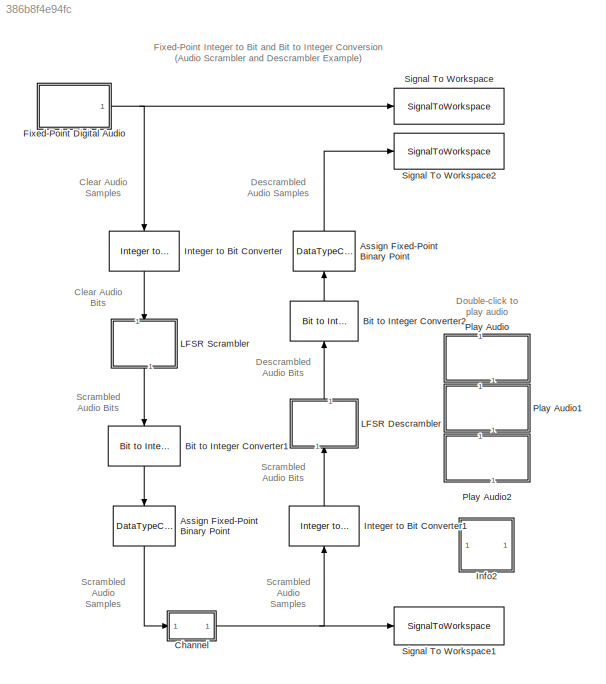
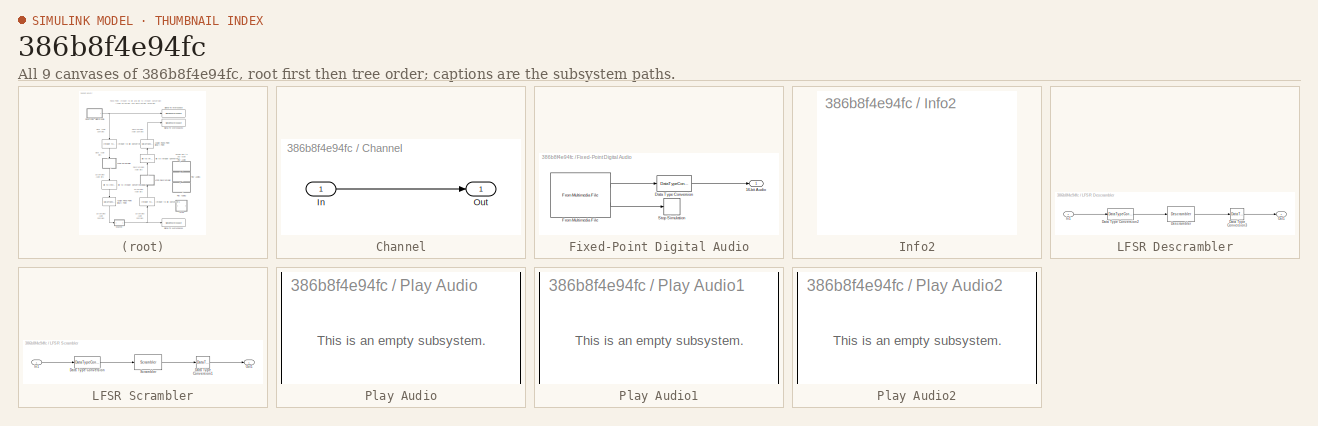
[diagram: thumbnail index - all 9 canvases of the model, root first then tree order]
MODEL slx_386b8f4e94fc
KIND model
BLOCK [DataTypeConversion] Assign Fixed-Point Binary Point
  ConvertRealWorld = Stored Integer (SI)
  OutDataTypeStr = fixdt(1,16,15)
  OutMax = (32767/32768)
  OutMin = -1
  RndMeth = Floor
  SaturateOnIntegerOverflow = off
BLOCK [Reference] Bit to Integer Converter1  REF=commutil2/Bit to Integer
Converter
  Ports = [1, 1]
  SourceBlock = commutil2/Bit to Integer\nConverter
  SourceType = Bit to Integer Converter
  bitOrder = MSB first
  nbits = 16
  outDtype = Inherit via internal rule
  outDtypeSigned = Inherit via internal rule
  signedOutputValues = Signed
BLOCK [Reference] Bit to Integer Converter2  REF=commutil2/Bit to Integer
Converter
  Ports = [1, 1]
  SourceBlock = commutil2/Bit to Integer\nConverter
  SourceType = Bit to Integer Converter
  bitOrder = MSB first
  nbits = 16
  outDtype = Inherit via internal rule
  outDtypeSigned = Inherit via internal rule
  signedOutputValues = Signed
BLOCK [SubSystem] Channel
  Ports = [1, 1]
  RequestExecContextInheritance = off
BLOCK [Inport] Channel/In
  IconDisplay = Port number
BLOCK [Outport] Channel/Out
  IconDisplay = Port number
BLOCK [SubSystem] Fixed-Point Digital Audio
  Ports = [0, 1]
  RequestExecContextInheritance = off
BLOCK [Outport] Fixed-Point Digital Audio/16-bit Audio
  IconDisplay = Port number
BLOCK [DataTypeConversion] Fixed-Point Digital Audio/Data Type Conversion
  ConvertRealWorld = Stored Integer (SI)
  OutDataTypeStr = fixdt(1,16,15)
  OutMax = (32767/32768)
  OutMin = -1
  RndMeth = Floor
  SaturateOnIntegerOverflow = off
BLOCK [Reference] Fixed-Point Digital Audio/From Multimedia File  REF=dspvision/From Multimedia File
  Ports = [0, 2]
  SourceBlock = dspvision/From Multimedia File
  SourceType = From Multimedia File
  audioDataType = int16
  audioFrameSize = 1024
  colorVideoFormat = Separate color signals
  computeAudioFrameSize = off
  dataOrg = Column-major
  fourcc = RGB
  inheritSampleTime = on
  inputFilename = speech_dft.avi
  isIntensityVideo = off
  loop = on
  noAudioOutput = off
  numPlays = 1
  outSamplingMode = Frame based
  outputEOF = on
  outputStreams = Audio only
  userDefinedSampleTime = 1/30
  videoDataType = single
BLOCK [Stop] Fixed-Point Digital Audio/Stop Simulation
BLOCK [SubSystem] Info2
  AncestorBlock = commblksprivate/Info
  OpenFcn = helpview([docroot '/toolbox/comm/comm.map'], 'doc_audioscrambler')
  Ports = []
  RequestExecContextInheritance = off
BLOCK [Reference] Integer to Bit Converter  REF=commutil2/Integer to Bit
Converter
  Ports = [1, 1]
  SourceBlock = commutil2/Integer to Bit\nConverter
  SourceType = Integer to Bit Converter
  bitOrder = MSB first
  nbits = 16
  outDtype = Inherit via internal rule
  signedInputValues = Signed
BLOCK [Reference] Integer to Bit Converter1  REF=commutil2/Integer to Bit
Converter
  Ports = [1, 1]
  SourceBlock = commutil2/Integer to Bit\nConverter
  SourceType = Integer to Bit Converter
  bitOrder = MSB first
  nbits = 16
  outDtype = Inherit via internal rule
  signedInputValues = Signed
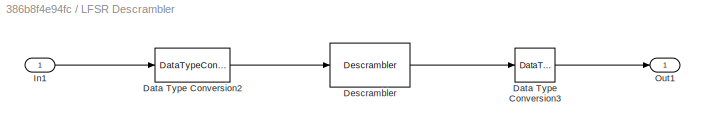
BLOCK [SubSystem] LFSR Descrambler
  Ports = [1, 1]
  RequestExecContextInheritance = off
  ShowPortLabels = none
BLOCK [DataTypeConversion] LFSR Descrambler/Data Type Conversion2
  OutDataTypeStr = boolean
  OutMax = 1
  OutMin = 0
  RndMeth = Floor
  SaturateOnIntegerOverflow = off
BLOCK [DataTypeConversion] LFSR Descrambler/Data Type Conversion3
  OutDataTypeStr = fixdt(0,1,0)
  OutMax = 1
  OutMin = 0
  RndMeth = Floor
  SaturateOnIntegerOverflow = off
BLOCK [Reference] LFSR Descrambler/Descrambler  REF=commsequence2/Descrambler
  M = 2
  Ports = [1, 1]
  SourceBlock = commsequence2/Descrambler
  SourceType = Descrambler
  ini_sta = [0 1 1 0]
  poly = [1 1 1 0 1]
BLOCK [Inport] LFSR Descrambler/In1
  IconDisplay = Port number
BLOCK [Outport] LFSR Descrambler/Out1
  IconDisplay = Port number
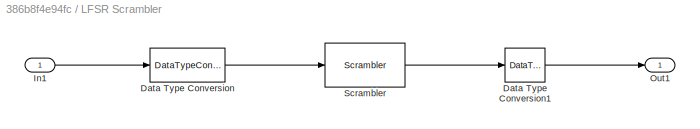
BLOCK [SubSystem] LFSR Scrambler
  Ports = [1, 1]
  RequestExecContextInheritance = off
  ShowPortLabels = none
BLOCK [DataTypeConversion] LFSR Scrambler/Data Type Conversion
  OutDataTypeStr = boolean
  OutMax = 1
  OutMin = 0
  RndMeth = Floor
  SaturateOnIntegerOverflow = off
BLOCK [DataTypeConversion] LFSR Scrambler/Data Type Conversion1
  OutDataTypeStr = fixdt(0,1,0)
  OutMax = 1
  OutMin = 0
  RndMeth = Floor
  SaturateOnIntegerOverflow = off
BLOCK [Inport] LFSR Scrambler/In1
  IconDisplay = Port number
BLOCK [Outport] LFSR Scrambler/Out1
  IconDisplay = Port number
BLOCK [Reference] LFSR Scrambler/Scrambler  REF=commsequence2/Scrambler
  M = 2
  Ports = [1, 1]
  SourceBlock = commsequence2/Scrambler
  SourceType = Scrambler
  ini_sta = [0 1 1 0]
  poly = [1 1 1 0 1]
BLOCK [SubSystem] Play Audio
  OpenFcn = if exist('clearAudio','var')\n   sound(clearAudio, 22050);\nend
  Ports = []
  RequestExecContextInheritance = off
  ShowPortLabels = none
BLOCK [SubSystem] Play Audio1
  OpenFcn = if exist('scrambledAudio','var')\n   sound(scrambledAudio, 22050);\nend
  Ports = []
  RequestExecContextInheritance = off
  ShowPortLabels = none
BLOCK [SubSystem] Play Audio2
  OpenFcn = if exist('descrambledAudio','var')\n   sound(descrambledAudio, 22050);\nend
  Ports = []
  RequestExecContextInheritance = off
  ShowPortLabels = none
BLOCK [SignalToWorkspace] Signal To Workspace
  CopyFcn = dspblkcopystw(gcbh);
  MaxDataPoints = inf
  Ports = [1]
  Save2DSignal = Inherit from input (this choice will be removed - see release notes)
  VariableName = clearAudio
BLOCK [SignalToWorkspace] Signal To Workspace1
  CopyFcn = dspblkcopystw(gcbh);
  MaxDataPoints = inf
  Ports = [1]
  Save2DSignal = Inherit from input (this choice will be removed - see release notes)
  VariableName = scrambledAudio
BLOCK [SignalToWorkspace] Signal To Workspace2
  CopyFcn = dspblkcopystw(gcbh);
  MaxDataPoints = inf
  Ports = [1]
  Save2DSignal = Inherit from input (this choice will be removed - see release notes)
  VariableName = descrambledAudio
ANNOTATION (root): Clear Audio Bits
ANNOTATION (root): Clear Audio Samples
ANNOTATION (root): Descrambled Audio Bits
ANNOTATION (root): Descrambled Audio Samples
ANNOTATION (root): Double-click to play audio
ANNOTATION (root): Fixed-Point Integer to Bit and Bit to Integer Conversion (Audio Scrambler and Descrambler Example)
ANNOTATION (root): Scrambled Audio Samples
ANNOTATION (root): Scrambled Audio Bits
ANNOTATION Play Audio: This is an empty subsystem.
ANNOTATION Play Audio1: This is an empty subsystem.
ANNOTATION Play Audio2: This is an empty subsystem.
NET Assign Fixed-Point Binary Point:1 -> Channel:1, Signal To Workspace2:1
LINE Bit to Integer Converter1:1 -> Assign Fixed-Point Binary Point:1
LINE Bit to Integer Converter2:1 -> Assign Fixed-Point Binary Point:1
LINE Channel/In:1 -> Channel/Out:1
NET Channel:1 -> Integer to Bit Converter1:1, Signal To Workspace1:1
LINE Fixed-Point Digital Audio/Data Type Conversion:1 -> Fixed-Point Digital Audio/16-bit Audio:1
LINE Fixed-Point Digital Audio/From Multimedia File:1 -> Fixed-Point Digital Audio/Data Type Conversion:1
LINE Fixed-Point Digital Audio/From Multimedia File:2 -> Fixed-Point Digital Audio/Stop Simulation:1
NET Fixed-Point Digital Audio:1 -> Integer to Bit Converter:1, Signal To Workspace:1
LINE Integer to Bit Converter1:1 -> LFSR Descrambler:1
LINE Integer to Bit Converter:1 -> LFSR Scrambler:1
LINE LFSR Descrambler/Data Type Conversion2:1 -> LFSR Descrambler/Descrambler:1
LINE LFSR Descrambler/Data Type Conversion3:1 -> LFSR Descrambler/Out1:1
LINE LFSR Descrambler/Descrambler:1 -> LFSR Descrambler/Data Type Conversion3:1
LINE LFSR Descrambler/In1:1 -> LFSR Descrambler/Data Type Conversion2:1
LINE LFSR Descrambler:1 -> Bit to Integer Converter2:1
LINE LFSR Scrambler/Data Type Conversion1:1 -> LFSR Scrambler/Out1:1
LINE LFSR Scrambler/Data Type Conversion:1 -> LFSR Scrambler/Scrambler:1
LINE LFSR Scrambler/In1:1 -> LFSR Scrambler/Data Type Conversion:1
LINE LFSR Scrambler/Scrambler:1 -> LFSR Scrambler/Data Type Conversion1:1
LINE LFSR Scrambler:1 -> Bit to Integer Converter1:1
note: NET lines group one-source signal fan-out (src -> all destinations, sorted); 1:1 wires keep LINE
